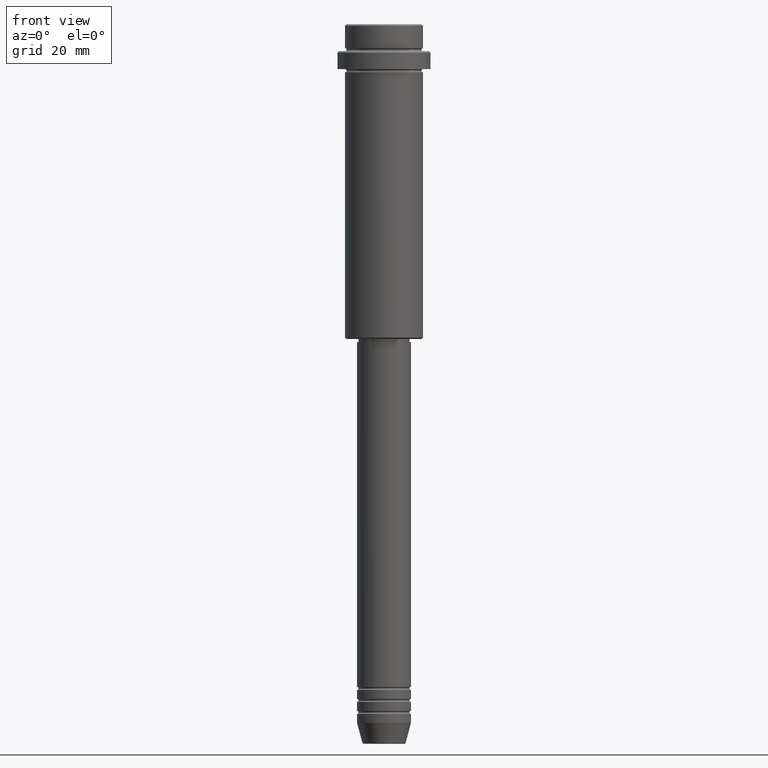
[diagram: clean part render]
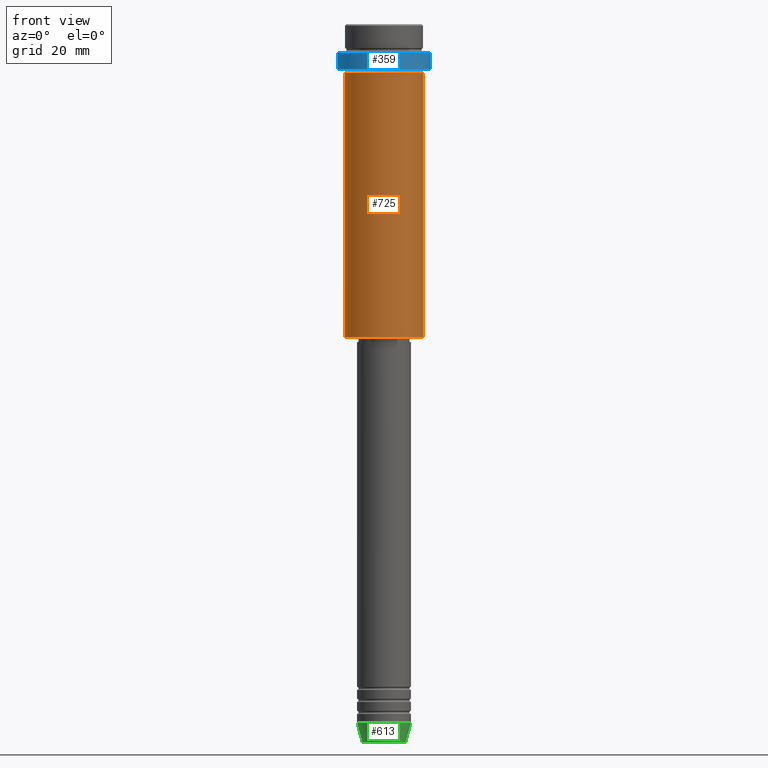
[diagram: same view with three faces highlighted in distinct colors, each labeled with its STEP entity id]
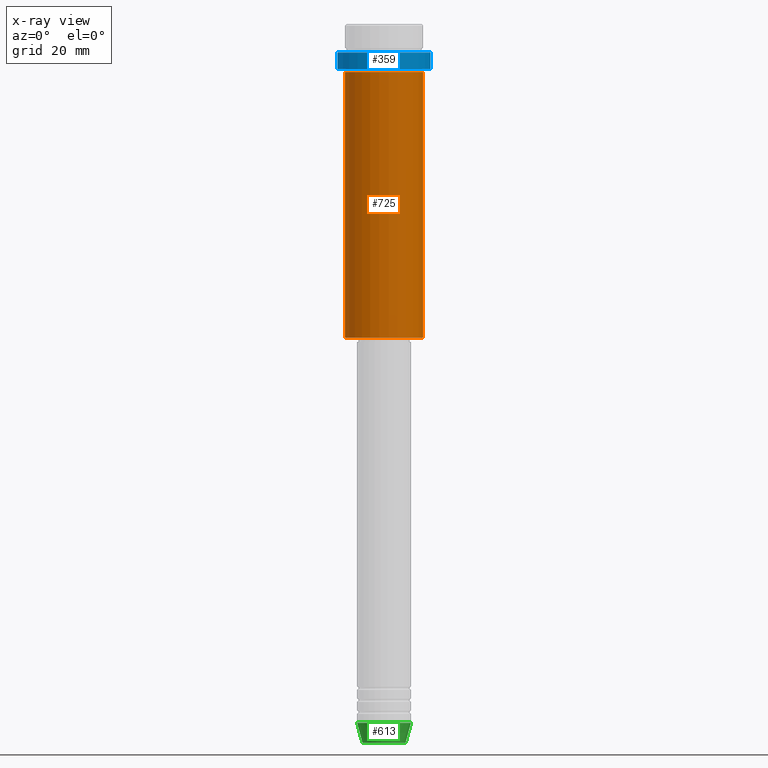
[diagram: x-ray of the same camera — body ghosted, the three highlighted faces saturated]
A machine part, front view with three faces highlighted in distinct colors.
The next image is the same camera in x-ray (body ghosted, the three faces saturated) — at least one of them is partly hidden behind the body in this view.
Their STEP definitions:

[orange] entity #725 — the highlighted cylindrical surface (partial cylindrical patch) has radius 13 mm, axis along (-0, -0, 1).
#21 = VERTEX_POINT ( 'NONE', #1328 ) ;
#42 = FACE_OUTER_BOUND ( 'NONE', #360, .T. ) ;
#107 = DIRECTION ( 'NONE',  ( -1.000000000000000000, 0.000000000000000000, 0.000000000000000000 ) ) ;
#120 = CIRCLE ( 'NONE', #464, 13.00000000000000000 ) ;
#148 = CARTESIAN_POINT ( 'NONE',  ( 13.00000000000000000, 0.000000000000000000, 0.000000000000000000 ) ) ;
#229 = EDGE_CURVE ( 'NONE', #21, #1106, #1217, .T. ) ;
#305 = DIRECTION ( 'NONE',  ( 1.000000000000000000, 0.000000000000000000, 0.000000000000000000 ) ) ;
#327 = CIRCLE ( 'NONE', #489, 13.00000000000000000 ) ;
#335 = VERTEX_POINT ( 'NONE', #1103 ) ;
#360 = EDGE_LOOP ( 'NONE', ( #1006, #923, #430, #1373 ) ) ;
#399 = CARTESIAN_POINT ( 'NONE',  ( -13.00000000000000000, 1.592040838891559095E-15, -16.00000000000000000 ) ) ;
#430 = ORIENTED_EDGE ( 'NONE', *, *, #658, .T. ) ;
#464 = AXIS2_PLACEMENT_3D ( 'NONE', #1088, #1404, #107 ) ;
#477 = DIRECTION ( 'NONE',  ( -0.000000000000000000, -0.000000000000000000, 1.000000000000000000 ) ) ;
#487 = AXIS2_PLACEMENT_3D ( 'NONE', #908, #477, #695 ) ;
#489 = AXIS2_PLACEMENT_3D ( 'NONE', #1295, #834, #305 ) ;
#495 = CYLINDRICAL_SURFACE ( 'NONE', #487, 13.00000000000000000 ) ;
#547 = CARTESIAN_POINT ( 'NONE',  ( 13.00000000000000000, 0.000000000000000000, -104.5000000000000995 ) ) ;
#551 = CARTESIAN_POINT ( 'NONE',  ( -13.00000000000000000, 1.592040838891559095E-15, 0.000000000000000000 ) ) ;
#578 = LINE ( 'NONE', #148, #947 ) ;
#658 = EDGE_CURVE ( 'NONE', #1148, #335, #578, .T. ) ;
#695 = DIRECTION ( 'NONE',  ( 1.000000000000000000, 0.000000000000000000, 0.000000000000000000 ) ) ;
#725 = ADVANCED_FACE ( 'NONE', ( #42 ), #495, .T. ) ;
#826 = EDGE_CURVE ( 'NONE', #1106, #335, #327, .T. ) ;
#834 = DIRECTION ( 'NONE',  ( -0.000000000000000000, -0.000000000000000000, 1.000000000000000000 ) ) ;
#871 = VECTOR ( 'NONE', #983, 1000.000000000000000 ) ;
#908 = CARTESIAN_POINT ( 'NONE',  ( 0.000000000000000000, 0.000000000000000000, 0.000000000000000000 ) ) ;
#923 = ORIENTED_EDGE ( 'NONE', *, *, #1232, .T. ) ;
#947 = VECTOR ( 'NONE', #1364, 1000.000000000000000 ) ;
#983 = DIRECTION ( 'NONE',  ( -0.000000000000000000, -0.000000000000000000, 1.000000000000000000 ) ) ;
#1006 = ORIENTED_EDGE ( 'NONE', *, *, #229, .F. ) ;
#1088 = CARTESIAN_POINT ( 'NONE',  ( 0.000000000000000000, 0.000000000000000000, -104.5000000000000995 ) ) ;
#1103 = CARTESIAN_POINT ( 'NONE',  ( 13.00000000000000000, 0.000000000000000000, -16.00000000000000000 ) ) ;
#1106 = VERTEX_POINT ( 'NONE', #399 ) ;
#1148 = VERTEX_POINT ( 'NONE', #547 ) ;
#1217 = LINE ( 'NONE', #551, #871 ) ;
#1232 = EDGE_CURVE ( 'NONE', #21, #1148, #120, .T. ) ;
#1295 = CARTESIAN_POINT ( 'NONE',  ( 0.000000000000000000, 0.000000000000000000, -16.00000000000000000 ) ) ;
#1328 = CARTESIAN_POINT ( 'NONE',  ( -13.00000000000000000, 1.592040838891559095E-15, -104.5000000000000995 ) ) ;
#1364 = DIRECTION ( 'NONE',  ( -0.000000000000000000, -0.000000000000000000, 1.000000000000000000 ) ) ;
#1373 = ORIENTED_EDGE ( 'NONE', *, *, #826, .F. ) ;
#1404 = DIRECTION ( 'NONE',  ( -0.000000000000000000, -0.000000000000000000, 1.000000000000000000 ) ) ;

[blue] entity #359 — the highlighted cylindrical surface (partial cylindrical patch) has radius 15.5 mm, axis along (-0, -0, 1).
#2 = VERTEX_POINT ( 'NONE', #532 ) ;
#55 = CYLINDRICAL_SURFACE ( 'NONE', #1150, 15.50000000000000000 ) ;
#93 = EDGE_CURVE ( 'NONE', #175, #196, #1235, .T. ) ;
#116 = VECTOR ( 'NONE', #694, 1000.000000000000000 ) ;
#136 = EDGE_CURVE ( 'NONE', #196, #2, #1034, .T. ) ;
#175 = VERTEX_POINT ( 'NONE', #1289 ) ;
#196 = VERTEX_POINT ( 'NONE', #824 ) ;
#202 = DIRECTION ( 'NONE',  ( -0.000000000000000000, -0.000000000000000000, 1.000000000000000000 ) ) ;
#246 = CARTESIAN_POINT ( 'NONE',  ( 15.50000000000000000, 0.000000000000000000, 0.000000000000000000 ) ) ;
#261 = AXIS2_PLACEMENT_3D ( 'NONE', #1151, #605, #704 ) ;
#319 = EDGE_LOOP ( 'NONE', ( #731, #902, #1394, #1121 ) ) ;
#359 = ADVANCED_FACE ( 'NONE', ( #594 ), #55, .T. ) ;
#401 = DIRECTION ( 'NONE',  ( -0.000000000000000000, -0.000000000000000000, 1.000000000000000000 ) ) ;
#444 = CIRCLE ( 'NONE', #261, 15.50000000000000000 ) ;
#521 = DIRECTION ( 'NONE',  ( 1.000000000000000000, 0.000000000000000000, 0.000000000000000000 ) ) ;
#532 = CARTESIAN_POINT ( 'NONE',  ( -15.50000000000000000, 1.898202538678397557E-15, -9.500000000000014211 ) ) ;
#594 = FACE_OUTER_BOUND ( 'NONE', #319, .T. ) ;
#605 = DIRECTION ( 'NONE',  ( -0.000000000000000000, -0.000000000000000000, 1.000000000000000000 ) ) ;
#694 = DIRECTION ( 'NONE',  ( -0.000000000000000000, -0.000000000000000000, 1.000000000000000000 ) ) ;
#704 = DIRECTION ( 'NONE',  ( 1.000000000000000000, 0.000000000000000000, 0.000000000000000000 ) ) ;
#731 = ORIENTED_EDGE ( 'NONE', *, *, #1242, .F. ) ;
#736 = VERTEX_POINT ( 'NONE', #1143 ) ;
#759 = CARTESIAN_POINT ( 'NONE',  ( -15.50000000000000000, 1.898202538678397557E-15, 0.000000000000000000 ) ) ;
#824 = CARTESIAN_POINT ( 'NONE',  ( 15.50000000000000000, 0.000000000000000000, -9.500000000000014211 ) ) ;
#833 = DIRECTION ( 'NONE',  ( 1.000000000000000000, 0.000000000000000000, 0.000000000000000000 ) ) ;
#902 = ORIENTED_EDGE ( 'NONE', *, *, #1095, .T. ) ;
#1019 = VECTOR ( 'NONE', #202, 1000.000000000000000 ) ;
#1034 = CIRCLE ( 'NONE', #1084, 15.50000000000000000 ) ;
#1084 = AXIS2_PLACEMENT_3D ( 'NONE', #1167, #1174, #521 ) ;
#1095 = EDGE_CURVE ( 'NONE', #736, #175, #444, .T. ) ;
#1121 = ORIENTED_EDGE ( 'NONE', *, *, #136, .T. ) ;
#1134 = CARTESIAN_POINT ( 'NONE',  ( 0.000000000000000000, 0.000000000000000000, 0.000000000000000000 ) ) ;
#1143 = CARTESIAN_POINT ( 'NONE',  ( -15.50000000000000000, 1.898202538678397557E-15, -15.00000000000000178 ) ) ;
#1150 = AXIS2_PLACEMENT_3D ( 'NONE', #1134, #401, #833 ) ;
#1151 = CARTESIAN_POINT ( 'NONE',  ( 0.000000000000000000, 0.000000000000000000, -15.00000000000000178 ) ) ;
#1167 = CARTESIAN_POINT ( 'NONE',  ( 0.000000000000000000, 0.000000000000000000, -9.500000000000014211 ) ) ;
#1174 = DIRECTION ( 'NONE',  ( 0.000000000000000000, 0.000000000000000000, -1.000000000000000000 ) ) ;
#1184 = LINE ( 'NONE', #759, #1019 ) ;
#1235 = LINE ( 'NONE', #246, #116 ) ;
#1242 = EDGE_CURVE ( 'NONE', #736, #2, #1184, .T. ) ;
#1289 = CARTESIAN_POINT ( 'NONE',  ( 15.50000000000000000, 0.000000000000000000, -15.00000000000000178 ) ) ;
#1394 = ORIENTED_EDGE ( 'NONE', *, *, #93, .T. ) ;

[green] entity #613 — the highlighted conical surface has half-angle 15 deg.
#11 = AXIS2_PLACEMENT_3D ( 'NONE', #280, #709, #1156 ) ;
#24 = CARTESIAN_POINT ( 'NONE',  ( 0.000000000000000000, 0.000000000000000000, -233.0000000000000284 ) ) ;
#38 = EDGE_CURVE ( 'NONE', #839, #511, #1060, .T. ) ;
#89 = CARTESIAN_POINT ( 'NONE',  ( 0.000000000000000000, 0.000000000000000000, -233.0000000000000284 ) ) ;
#98 = LINE ( 'NONE', #1022, #684 ) ;
#256 = DIRECTION ( 'NONE',  ( 0.2588190451025205174, 0.000000000000000000, 0.9659258262890684232 ) ) ;
#257 = AXIS2_PLACEMENT_3D ( 'NONE', #24, #385, #1371 ) ;
#268 = CARTESIAN_POINT ( 'NONE',  ( 9.000000000000000000, 0.000000000000000000, -233.0000000000000284 ) ) ;
#280 = CARTESIAN_POINT ( 'NONE',  ( 0.000000000000000000, 0.000000000000000000, -239.6294095225512990 ) ) ;
#340 = CARTESIAN_POINT ( 'NONE',  ( -7.223655072137194821, 9.934123627281767082E-16, -239.6294095225512990 ) ) ;
#385 = DIRECTION ( 'NONE',  ( -0.000000000000000000, -0.000000000000000000, 1.000000000000000000 ) ) ;
#413 = CARTESIAN_POINT ( 'NONE',  ( 7.223655072137194821, 0.000000000000000000, -239.6294095225512990 ) ) ;
#503 = EDGE_CURVE ( 'NONE', #591, #839, #98, .T. ) ;
#511 = VERTEX_POINT ( 'NONE', #268 ) ;
#574 = CONICAL_SURFACE ( 'NONE', #257, 9.000000000000000000, 0.2617993877991491303 ) ;
#591 = VERTEX_POINT ( 'NONE', #340 ) ;
#613 = ADVANCED_FACE ( 'NONE', ( #622 ), #574, .T. ) ;
#622 = FACE_OUTER_BOUND ( 'NONE', #1010, .T. ) ;
#638 = EDGE_CURVE ( 'NONE', #1292, #511, #788, .T. ) ;
#659 = ORIENTED_EDGE ( 'NONE', *, *, #687, .T. ) ;
#684 = VECTOR ( 'NONE', #1257, 1000.000000000000114 ) ;
#687 = EDGE_CURVE ( 'NONE', #591, #1292, #1333, .T. ) ;
#709 = DIRECTION ( 'NONE',  ( -0.000000000000000000, -0.000000000000000000, 1.000000000000000000 ) ) ;
#744 = DIRECTION ( 'NONE',  ( -0.000000000000000000, -0.000000000000000000, 1.000000000000000000 ) ) ;
#788 = LINE ( 'NONE', #1120, #1388 ) ;
#789 = ORIENTED_EDGE ( 'NONE', *, *, #638, .T. ) ;
#794 = ORIENTED_EDGE ( 'NONE', *, *, #503, .F. ) ;
#807 = DIRECTION ( 'NONE',  ( 1.000000000000000000, 0.000000000000000000, 0.000000000000000000 ) ) ;
#839 = VERTEX_POINT ( 'NONE', #1395 ) ;
#1010 = EDGE_LOOP ( 'NONE', ( #794, #659, #789, #1309 ) ) ;
#1022 = CARTESIAN_POINT ( 'NONE',  ( -9.000000000000000000, 1.102182119232617714E-15, -233.0000000000000284 ) ) ;
#1060 = CIRCLE ( 'NONE', #1383, 9.000000000000000000 ) ;
#1120 = CARTESIAN_POINT ( 'NONE',  ( 9.000000000000000000, 0.000000000000000000, -233.0000000000000284 ) ) ;
#1156 = DIRECTION ( 'NONE',  ( 1.000000000000000000, 0.000000000000000000, 0.000000000000000000 ) ) ;
#1257 = DIRECTION ( 'NONE',  ( -0.2588190451025205174, 3.169619151431761243E-17, 0.9659258262890684232 ) ) ;
#1292 = VERTEX_POINT ( 'NONE', #413 ) ;
#1309 = ORIENTED_EDGE ( 'NONE', *, *, #38, .F. ) ;
#1333 = CIRCLE ( 'NONE', #11, 7.223655072137194821 ) ;
#1371 = DIRECTION ( 'NONE',  ( 1.000000000000000000, 0.000000000000000000, 0.000000000000000000 ) ) ;
#1383 = AXIS2_PLACEMENT_3D ( 'NONE', #89, #744, #807 ) ;
#1388 = VECTOR ( 'NONE', #256, 1000.000000000000114 ) ;
#1395 = CARTESIAN_POINT ( 'NONE',  ( -9.000000000000000000, 1.102182119232617714E-15, -233.0000000000000284 ) ) ;